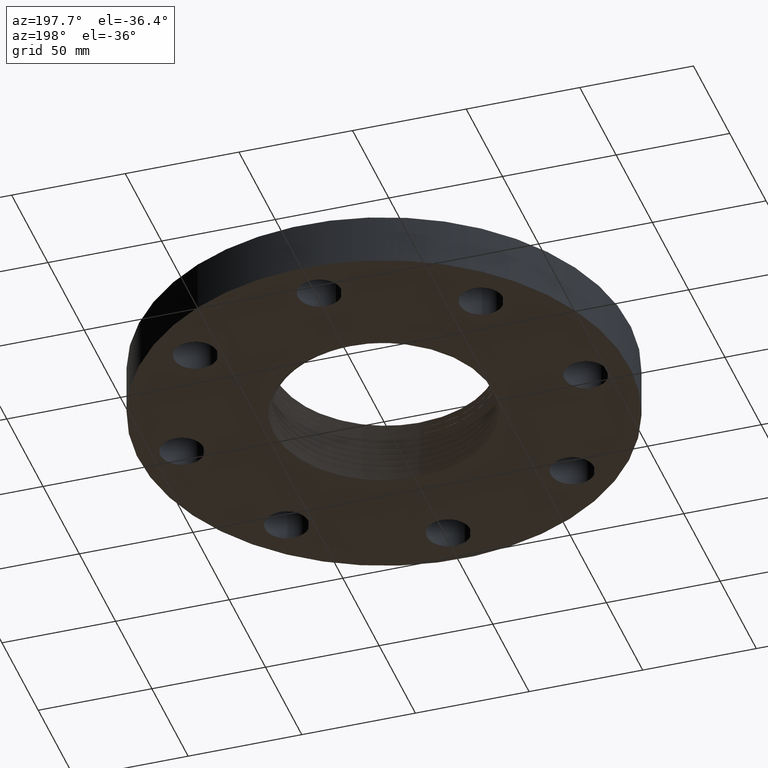
[diagram: clean part render]
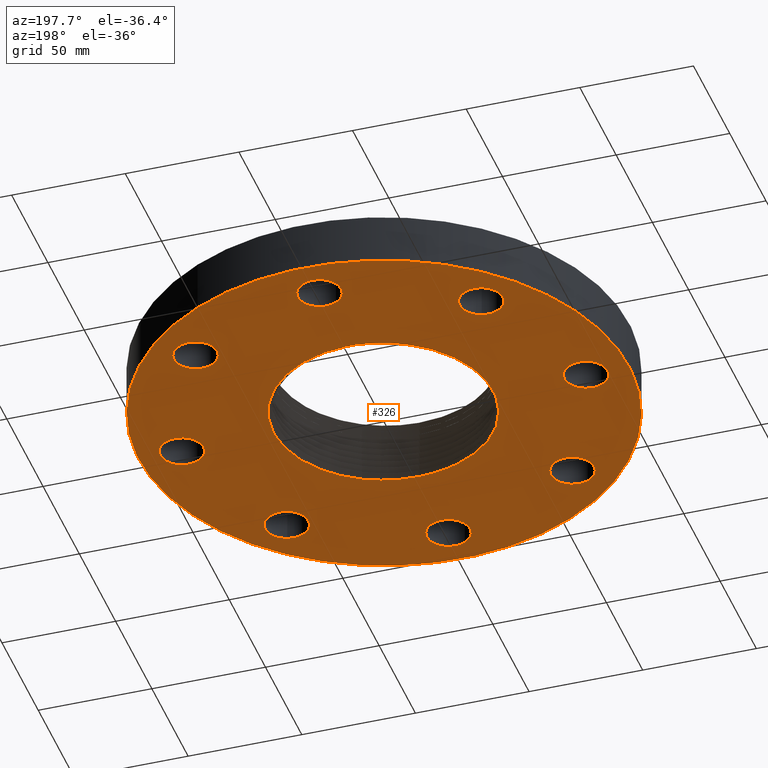
[diagram: same view with one face highlighted and labeled with its STEP entity id]
A machine part, auxiliary view. The second image highlights one B-rep face of the part: STEP entity #326.
In plain terms, the highlighted planar face has unit normal (0, 0, -1).
Its self-contained STEP definition (entity closure, byte-faithful):
#38=AXIS2_PLACEMENT_3D('Plane Axis2P3D',#35,#36,#37) ;
#42=AXIS2_PLACEMENT_3D('Circle Axis2P3D',#40,#41,$) ;
#51=AXIS2_PLACEMENT_3D('Circle Axis2P3D',#49,#50,$) ;
#170=AXIS2_PLACEMENT_3D('Circle Axis2P3D',#168,#169,$) ;
#184=AXIS2_PLACEMENT_3D('Circle Axis2P3D',#182,#183,$) ;
#193=AXIS2_PLACEMENT_3D('Circle Axis2P3D',#191,#192,$) ;
#202=AXIS2_PLACEMENT_3D('Circle Axis2P3D',#200,#201,$) ;
#211=AXIS2_PLACEMENT_3D('Circle Axis2P3D',#209,#210,$) ;
#220=AXIS2_PLACEMENT_3D('Circle Axis2P3D',#218,#219,$) ;
#229=AXIS2_PLACEMENT_3D('Circle Axis2P3D',#227,#228,$) ;
#238=AXIS2_PLACEMENT_3D('Circle Axis2P3D',#236,#237,$) ;
#247=AXIS2_PLACEMENT_3D('Circle Axis2P3D',#245,#246,$) ;
#256=AXIS2_PLACEMENT_3D('Circle Axis2P3D',#254,#255,$) ;
#265=AXIS2_PLACEMENT_3D('Circle Axis2P3D',#263,#264,$) ;
#274=AXIS2_PLACEMENT_3D('Circle Axis2P3D',#272,#273,$) ;
#283=AXIS2_PLACEMENT_3D('Circle Axis2P3D',#281,#282,$) ;
#292=AXIS2_PLACEMENT_3D('Circle Axis2P3D',#290,#291,$) ;
#301=AXIS2_PLACEMENT_3D('Circle Axis2P3D',#299,#300,$) ;
#310=AXIS2_PLACEMENT_3D('Circle Axis2P3D',#308,#309,$) ;
#319=AXIS2_PLACEMENT_3D('Circle Axis2P3D',#317,#318,$) ;
#35=CARTESIAN_POINT('Axis2P3D Location',(0.,0.,0.)) ;
#40=CARTESIAN_POINT('Axis2P3D Location',(0.,0.,0.)) ;
#44=CARTESIAN_POINT('Vertex',(2.03755853908,3.72972588805,4.19611851827E-016)) ;
#46=CARTESIAN_POINT('Vertex',(-2.03755853908,-3.72972588805,4.19611851827E-016)) ;
#49=CARTESIAN_POINT('Axis2P3D Location',(0.,0.,0.)) ;
#59=CARTESIAN_POINT('Control Point',(-0.0633267075977,-1.85553353111,0.)) ;
#60=CARTESIAN_POINT('Control Point',(-0.0506730812121,-1.85617253441,0.)) ;
#61=CARTESIAN_POINT('Control Point',(-0.0380133234835,-1.85670366126,0.)) ;
#62=CARTESIAN_POINT('Control Point',(-0.0253494040522,-1.85712679425,0.)) ;
#63=CARTESIAN_POINT('Control Point',(-0.0126830707512,-1.85744185462,0.)) ;
#64=CARTESIAN_POINT('Control Point',(-1.40866664012E-005,-1.85764889905,0.)) ;
#65=CARTESIAN_POINT('Vertex',(-0.0633267164325,-1.85553364769,-1.63774505768E-012)) ;
#67=CARTESIAN_POINT('Vertex',(-1.40866663999E-005,-1.85764889905,1.09273919747E-018)) ;
#71=CARTESIAN_POINT('Control Point',(0.897867915374,-1.64356104285,0.)) ;
#72=CARTESIAN_POINT('Control Point',(0.765347123306,-1.71319285004,0.)) ;
#73=CARTESIAN_POINT('Control Point',(0.625973435747,-1.76952661312,0.)) ;
#74=CARTESIAN_POINT('Control Point',(0.481518223036,-1.81164636436,0.)) ;
#75=CARTESIAN_POINT('Control Point',(0.297252922014,-1.84579828259,0.)) ;
#76=CARTESIAN_POINT('Control Point',(0.111232555061,-1.85669120128,0.)) ;
#77=CARTESIAN_POINT('Control Point',(0.0741482246952,-1.85793573452,0.)) ;
#78=CARTESIAN_POINT('Control Point',(0.0370557452381,-1.85825471735,0.)) ;
#79=CARTESIAN_POINT('Control Point',(-1.40866663999E-005,-1.85764889905,0.)) ;
#80=CARTESIAN_POINT('Vertex',(0.897867915374,-1.64356104285,3.2782175924E-018)) ;
#84=CARTESIAN_POINT('Control Point',(9.64942761215E-007,1.95298002828,0.)) ;
#85=CARTESIAN_POINT('Control Point',(0.144972228706,1.95072743952,0.)) ;
#86=CARTESIAN_POINT('Control Point',(0.289634633506,1.93502148648,0.)) ;
#87=CARTESIAN_POINT('Control Point',(0.432287546926,1.90590672339,0.)) ;
#88=CARTESIAN_POINT('Control Point',(0.710345979929,1.82155604941,0.)) ;
#89=CARTESIAN_POINT('Control Point',(0.967575826294,1.68759496258,0.)) ;
#90=CARTESIAN_POINT('Control Point',(1.08949498926,1.60882831482,0.)) ;
#91=CARTESIAN_POINT('Control Point',(1.31707598864,1.42962112028,0.)) ;
#92=CARTESIAN_POINT('Control Point',(1.50728291778,1.21173986815,0.)) ;
#93=CARTESIAN_POINT('Control Point',(1.59186767326,1.09425781474,0.)) ;
#94=CARTESIAN_POINT('Control Point',(1.7379268129,0.845116566587,0.)) ;
#95=CARTESIAN_POINT('Control Point',(1.83509963355,0.573490740335,0.)) ;
#96=CARTESIAN_POINT('Control Point',(1.87075025429,0.433620224708,0.)) ;
#97=CARTESIAN_POINT('Control Point',(1.90420063932,0.220178861545,0.)) ;
#98=CARTESIAN_POINT('Control Point',(1.90740995573,0.00502142828058,0.)) ;
#99=CARTESIAN_POINT('Control Point',(1.90510925876,-0.0666462988016,0.)) ;
#100=CARTESIAN_POINT('Control Point',(1.89236875737,-0.227343680729,0.)) ;
#101=CARTESIAN_POINT('Control Point',(1.86274996949,-0.385769681356,0.)) ;
#102=CARTESIAN_POINT('Control Point',(1.8411432614,-0.472662606298,0.)) ;
#103=CARTESIAN_POINT('Control Point',(1.77183898931,-0.694646178049,0.)) ;
#104=CARTESIAN_POINT('Control Point',(1.6694131849,-0.903789411636,0.)) ;
#105=CARTESIAN_POINT('Control Point',(1.59444554978,-1.02606268873,0.)) ;
#106=CARTESIAN_POINT('Control Point',(1.42936161738,-1.24564696859,0.)) ;
#107=CARTESIAN_POINT('Control Point',(1.22787761939,-1.43156319312,0.)) ;
#108=CARTESIAN_POINT('Control Point',(1.12387764557,-1.51194464238,0.)) ;
#109=CARTESIAN_POINT('Control Point',(1.01348008317,-1.58281371375,0.)) ;
#110=CARTESIAN_POINT('Control Point',(0.897867915374,-1.64356104285,0.)) ;
#111=CARTESIAN_POINT('Vertex',(9.64942760376E-007,1.95298002828,2.18547839493E-018)) ;
#115=CARTESIAN_POINT('Control Point',(-0.153339811648,1.94934040302,0.)) ;
#116=CARTESIAN_POINT('Control Point',(-0.122707222886,1.95127229388,0.)) ;
#117=CARTESIAN_POINT('Control Point',(-0.0920410961886,1.95260278553,0.)) ;
#118=CARTESIAN_POINT('Control Point',(-0.0613571672932,1.95333098553,0.)) ;
#119=CARTESIAN_POINT('Control Point',(-0.0306712172093,1.95345661802,0.)) ;
#120=CARTESIAN_POINT('Control Point',(9.64942760271E-007,1.95298002828,0.)) ;
#121=CARTESIAN_POINT('Vertex',(-0.153339811648,1.94934040302,1.58447183633E-017)) ;
#125=CARTESIAN_POINT('Control Point',(-0.153339811648,1.94934040302,0.)) ;
#126=CARTESIAN_POINT('Control Point',(-0.308918646225,1.93441351549,0.)) ;
#127=CARTESIAN_POINT('Control Point',(-0.462871560948,1.90395284394,0.)) ;
#128=CARTESIAN_POINT('Control Point',(-0.613134497968,1.85817263839,0.)) ;
#129=CARTESIAN_POINT('Control Point',(-0.765317117824,1.79451142241,0.)) ;
#130=CARTESIAN_POINT('Control Point',(-0.909127762038,1.71569301934,0.)) ;
#131=CARTESIAN_POINT('Control Point',(-0.916331873383,1.71169481377,0.)) ;
#132=CARTESIAN_POINT('Control Point',(-0.923513967225,1.70765884185,0.)) ;
#133=CARTESIAN_POINT('Control Point',(-0.930674120053,1.70358506877,0.)) ;
#134=CARTESIAN_POINT('Vertex',(-0.930674120053,1.70358506877,1.09273919747E-018)) ;
#138=CARTESIAN_POINT('Control Point',(-0.930674120053,1.70358506877,0.)) ;
#139=CARTESIAN_POINT('Control Point',(-1.05629361075,1.63211378717,0.)) ;
#140=CARTESIAN_POINT('Control Point',(-1.17515966469,1.54900742109,0.)) ;
#141=CARTESIAN_POINT('Control Point',(-1.2858210213,1.45510744647,0.)) ;
#142=CARTESIAN_POINT('Control Point',(-1.48817274262,1.24794302656,0.)) ;
#143=CARTESIAN_POINT('Control Point',(-1.64840618834,1.00730122274,0.)) ;
#144=CARTESIAN_POINT('Control Point',(-1.71696051732,0.879905757949,0.)) ;
#145=CARTESIAN_POINT('Control Point',(-1.80123922726,0.680484058145,0.)) ;
#146=CARTESIAN_POINT('Control Point',(-1.85658434124,0.472169242977,0.)) ;
#147=CARTESIAN_POINT('Control Point',(-1.87175554708,0.401946221005,0.)) ;
#148=CARTESIAN_POINT('Control Point',(-1.89249570829,0.27804070504,0.)) ;
#149=CARTESIAN_POINT('Control Point',(-1.90299799424,0.153002566465,0.)) ;
#150=CARTESIAN_POINT('Control Point',(-1.90560875318,0.099294552562,0.)) ;
#151=CARTESIAN_POINT('Control Point',(-1.90824054737,-0.0977977052578,0.)) ;
#152=CARTESIAN_POINT('Control Point',(-1.88544509882,-0.294054368954,0.)) ;
#153=CARTESIAN_POINT('Control Point',(-1.85547198955,-0.434660357491,0.)) ;
#154=CARTESIAN_POINT('Control Point',(-1.76947876948,-0.708372095065,0.)) ;
#155=CARTESIAN_POINT('Control Point',(-1.63414295575,-0.960657252695,0.)) ;
#156=CARTESIAN_POINT('Control Point',(-1.55477129978,-1.07996303024,0.)) ;
#157=CARTESIAN_POINT('Control Point',(-1.37461704576,-1.30196712359,0.)) ;
#158=CARTESIAN_POINT('Control Point',(-1.15641513803,-1.48596153752,0.)) ;
#159=CARTESIAN_POINT('Control Point',(-1.03897587674,-1.56727418971,0.)) ;
#160=CARTESIAN_POINT('Control Point',(-0.811603747509,-1.6946109335,0.)) ;
#161=CARTESIAN_POINT('Control Point',(-0.566318860669,-1.78064495725,0.)) ;
#162=CARTESIAN_POINT('Control Point',(-0.452384129918,-1.81075916623,0.)) ;
#163=CARTESIAN_POINT('Control Point',(-0.336607366294,-1.8317545595,0.)) ;
#164=CARTESIAN_POINT('Control Point',(-0.219968956672,-1.84353712047,0.)) ;
#165=CARTESIAN_POINT('Vertex',(-0.219968958275,-1.84353710246,-4.40956108023E-012)) ;
#168=CARTESIAN_POINT('Axis2P3D Location',(-1.39870617276E-016,0.,0.)) ;
#182=CARTESIAN_POINT('Axis2P3D Location',(3.50000000001,3.49676543189E-017,0.)) ;
#186=CARTESIAN_POINT('Vertex',(3.82909346072,-0.179784576977,0.)) ;
#188=CARTESIAN_POINT('Vertex',(3.1709065393,0.179784576977,0.)) ;
#191=CARTESIAN_POINT('Axis2P3D Location',(3.50000000001,6.99353086378E-017,0.)) ;
#200=CARTESIAN_POINT('Axis2P3D Location',(2.47487373416,-2.47487373416,0.)) ;
#204=CARTESIAN_POINT('Vertex',(2.36929640998,-2.11504262292,0.)) ;
#206=CARTESIAN_POINT('Vertex',(2.58045105834,-2.83470484541,0.)) ;
#209=CARTESIAN_POINT('Axis2P3D Location',(2.47487373416,-2.47487373416,0.)) ;
#218=CARTESIAN_POINT('Axis2P3D Location',(-2.79741234551E-016,-3.50000000001,0.)) ;
#222=CARTESIAN_POINT('Vertex',(0.179784576977,-3.1709065393,0.)) ;
#224=CARTESIAN_POINT('Vertex',(-0.179784576977,-3.82909346072,0.)) ;
#227=CARTESIAN_POINT('Axis2P3D Location',(-4.19611851827E-016,-3.50000000001,0.)) ;
#236=CARTESIAN_POINT('Axis2P3D Location',(-2.47487373416,-2.47487373416,0.)) ;
#240=CARTESIAN_POINT('Vertex',(-2.11504262292,-2.36929640998,0.)) ;
#242=CARTESIAN_POINT('Vertex',(-2.83470484541,-2.58045105834,0.)) ;
#245=CARTESIAN_POINT('Axis2P3D Location',(-2.47487373416,-2.47487373416,0.)) ;
#254=CARTESIAN_POINT('Axis2P3D Location',(-3.50000000001,-4.89547160465E-016,0.)) ;
#258=CARTESIAN_POINT('Vertex',(-3.1709065393,-0.179784576977,0.)) ;
#260=CARTESIAN_POINT('Vertex',(-3.82909346072,0.179784576977,0.)) ;
#263=CARTESIAN_POINT('Axis2P3D Location',(-3.50000000001,-4.89547160465E-016,0.)) ;
#272=CARTESIAN_POINT('Axis2P3D Location',(-2.47487373416,2.47487373416,0.)) ;
#276=CARTESIAN_POINT('Vertex',(-2.36929640998,2.11504262292,0.)) ;
#278=CARTESIAN_POINT('Vertex',(-2.58045105834,2.83470484541,0.)) ;
#281=CARTESIAN_POINT('Axis2P3D Location',(-2.47487373416,2.47487373416,0.)) ;
#290=CARTESIAN_POINT('Axis2P3D Location',(-7.69288395016E-016,3.50000000001,0.)) ;
#294=CARTESIAN_POINT('Vertex',(-0.179784576977,3.1709065393,0.)) ;
#296=CARTESIAN_POINT('Vertex',(0.179784576977,3.82909346072,0.)) ;
#299=CARTESIAN_POINT('Axis2P3D Location',(-5.59482469102E-016,3.50000000001,0.)) ;
#308=CARTESIAN_POINT('Axis2P3D Location',(2.47487373416,2.47487373416,0.)) ;
#312=CARTESIAN_POINT('Vertex',(2.11504262292,2.36929640998,0.)) ;
#314=CARTESIAN_POINT('Vertex',(2.83470484541,2.58045105834,0.)) ;
#317=CARTESIAN_POINT('Axis2P3D Location',(2.47487373416,2.47487373416,0.)) ;
#36=DIRECTION('Axis2P3D Direction',(0.,0.,-0.0393700787402)) ;
#37=DIRECTION('Axis2P3D XDirection',(0.0393700787402,0.,0.)) ;
#41=DIRECTION('Axis2P3D Direction',(0.,0.,-0.0393700787402)) ;
#50=DIRECTION('Axis2P3D Direction',(0.,0.,-0.0393700787402)) ;
#169=DIRECTION('Axis2P3D Direction',(0.,0.,-0.0393700787402)) ;
#183=DIRECTION('Axis2P3D Direction',(0.,0.,-0.0393700787402)) ;
#192=DIRECTION('Axis2P3D Direction',(0.,0.,-0.0393700787402)) ;
#201=DIRECTION('Axis2P3D Direction',(0.,0.,-0.0393700787402)) ;
#210=DIRECTION('Axis2P3D Direction',(0.,0.,-0.0393700787402)) ;
#219=DIRECTION('Axis2P3D Direction',(0.,0.,-0.0393700787402)) ;
#228=DIRECTION('Axis2P3D Direction',(0.,0.,-0.0393700787402)) ;
#237=DIRECTION('Axis2P3D Direction',(0.,0.,-0.0393700787402)) ;
#246=DIRECTION('Axis2P3D Direction',(0.,0.,-0.0393700787402)) ;
#255=DIRECTION('Axis2P3D Direction',(0.,0.,-0.0393700787402)) ;
#264=DIRECTION('Axis2P3D Direction',(0.,0.,-0.0393700787402)) ;
#273=DIRECTION('Axis2P3D Direction',(0.,0.,-0.0393700787402)) ;
#282=DIRECTION('Axis2P3D Direction',(0.,0.,-0.0393700787402)) ;
#291=DIRECTION('Axis2P3D Direction',(0.,0.,-0.0393700787402)) ;
#300=DIRECTION('Axis2P3D Direction',(0.,0.,-0.0393700787402)) ;
#309=DIRECTION('Axis2P3D Direction',(0.,0.,-0.0393700787402)) ;
#318=DIRECTION('Axis2P3D Direction',(0.,0.,-0.0393700787402)) ;
#55=ORIENTED_EDGE('',*,*,#48,.T.) ;
#56=ORIENTED_EDGE('',*,*,#53,.T.) ;
#174=ORIENTED_EDGE('',*,*,#69,.T.) ;
#175=ORIENTED_EDGE('',*,*,#82,.F.) ;
#176=ORIENTED_EDGE('',*,*,#113,.F.) ;
#177=ORIENTED_EDGE('',*,*,#123,.F.) ;
#178=ORIENTED_EDGE('',*,*,#136,.T.) ;
#179=ORIENTED_EDGE('',*,*,#167,.T.) ;
#180=ORIENTED_EDGE('',*,*,#172,.F.) ;
#197=ORIENTED_EDGE('',*,*,#190,.F.) ;
#198=ORIENTED_EDGE('',*,*,#195,.F.) ;
#215=ORIENTED_EDGE('',*,*,#208,.F.) ;
#216=ORIENTED_EDGE('',*,*,#213,.F.) ;
#233=ORIENTED_EDGE('',*,*,#226,.F.) ;
#234=ORIENTED_EDGE('',*,*,#231,.F.) ;
#251=ORIENTED_EDGE('',*,*,#244,.F.) ;
#252=ORIENTED_EDGE('',*,*,#249,.F.) ;
#269=ORIENTED_EDGE('',*,*,#262,.F.) ;
#270=ORIENTED_EDGE('',*,*,#267,.F.) ;
#287=ORIENTED_EDGE('',*,*,#280,.F.) ;
#288=ORIENTED_EDGE('',*,*,#285,.F.) ;
#305=ORIENTED_EDGE('',*,*,#298,.F.) ;
#306=ORIENTED_EDGE('',*,*,#303,.F.) ;
#323=ORIENTED_EDGE('',*,*,#316,.F.) ;
#324=ORIENTED_EDGE('',*,*,#321,.F.) ;
#181=FACE_BOUND('',#173,.T.) ;
#199=FACE_BOUND('',#196,.T.) ;
#217=FACE_BOUND('',#214,.T.) ;
#235=FACE_BOUND('',#232,.T.) ;
#253=FACE_BOUND('',#250,.T.) ;
#271=FACE_BOUND('',#268,.T.) ;
#289=FACE_BOUND('',#286,.T.) ;
#307=FACE_BOUND('',#304,.T.) ;
#325=FACE_BOUND('',#322,.T.) ;
#326=ADVANCED_FACE('PartBody',(#57,#181,#199,#217,#235,#253,#271,#289,#307,#325),#39,.T.) ;
#58=B_SPLINE_CURVE_WITH_KNOTS('',5,(#59,#60,#61,#62,#63,#64),.UNSPECIFIED.,.F.,.U.,(6,6),(2.89483751909,5.19925978414),.UNSPECIFIED.) ;
#70=B_SPLINE_CURVE_WITH_KNOTS('',5,(#71,#72,#73,#74,#75,#76,#77,#78,#79),.UNSPECIFIED.,.F.,.U.,(6,3,6),(0.,27.1156607427,33.8584702238),.UNSPECIFIED.) ;
#83=B_SPLINE_CURVE_WITH_KNOTS('',5,(#84,#85,#86,#87,#88,#89,#90,#91,#92,#93,#94,#95,#96,#97,#98,#99,#100,#101,#102,#103,#104,#105,#106,#107,#108,#109,#110),.UNSPECIFIED.,.F.,.U.,(6,3,3,3,3,3,3,3,6),(0.,25.7307295771,51.4800434704,77.2397945831,102.979999555,115.84185167,131.9143736,157.632189795,181.288102729),.UNSPECIFIED.) ;
#114=B_SPLINE_CURVE_WITH_KNOTS('',5,(#115,#116,#117,#118,#119,#120),.UNSPECIFIED.,.F.,.U.,(6,6),(0.,5.44395905801),.UNSPECIFIED.) ;
#124=B_SPLINE_CURVE_WITH_KNOTS('',5,(#125,#126,#127,#128,#129,#130,#131,#132,#133),.UNSPECIFIED.,.F.,.U.,(6,3,6),(0.,27.7211995638,29.1876102785),.UNSPECIFIED.) ;
#137=B_SPLINE_CURVE_WITH_KNOTS('',5,(#138,#139,#140,#141,#142,#143,#144,#145,#146,#147,#148,#149,#150,#151,#152,#153,#154,#155,#156,#157,#158,#159,#160,#161,#162,#163,#164),.UNSPECIFIED.,.F.,.U.,(6,3,3,3,3,3,3,3,6),(0.,25.727071971,51.4579112758,64.3225809888,73.9710760377,99.7124833179,125.479279521,151.250966325,172.60310106),.UNSPECIFIED.) ;
#43=CIRCLE('generated circle',#42,4.25000000002) ;
#52=CIRCLE('generated circle',#51,4.25000000002) ;
#171=CIRCLE('generated circle',#170,1.85661395846) ;
#185=CIRCLE('generated circle',#184,0.375000000002) ;
#194=CIRCLE('generated circle',#193,0.375000000002) ;
#203=CIRCLE('generated circle',#202,0.375000000002) ;
#212=CIRCLE('generated circle',#211,0.375000000002) ;
#221=CIRCLE('generated circle',#220,0.375000000002) ;
#230=CIRCLE('generated circle',#229,0.375000000002) ;
#239=CIRCLE('generated circle',#238,0.375000000002) ;
#248=CIRCLE('generated circle',#247,0.375000000002) ;
#257=CIRCLE('generated circle',#256,0.375000000001) ;
#266=CIRCLE('generated circle',#265,0.375000000001) ;
#275=CIRCLE('generated circle',#274,0.375000000002) ;
#284=CIRCLE('generated circle',#283,0.375000000002) ;
#293=CIRCLE('generated circle',#292,0.375000000002) ;
#302=CIRCLE('generated circle',#301,0.375000000002) ;
#311=CIRCLE('generated circle',#310,0.375000000002) ;
#320=CIRCLE('generated circle',#319,0.375000000002) ;
#48=EDGE_CURVE('',#45,#47,#43,.T.) ;
#53=EDGE_CURVE('',#47,#45,#52,.T.) ;
#69=EDGE_CURVE('',#66,#68,#58,.T.) ;
#82=EDGE_CURVE('',#81,#68,#70,.T.) ;
#113=EDGE_CURVE('',#112,#81,#83,.T.) ;
#123=EDGE_CURVE('',#122,#112,#114,.T.) ;
#136=EDGE_CURVE('',#122,#135,#124,.T.) ;
#167=EDGE_CURVE('',#135,#166,#137,.T.) ;
#172=EDGE_CURVE('',#66,#166,#171,.T.) ;
#190=EDGE_CURVE('',#187,#189,#185,.T.) ;
#195=EDGE_CURVE('',#189,#187,#194,.T.) ;
#208=EDGE_CURVE('',#205,#207,#203,.T.) ;
#213=EDGE_CURVE('',#207,#205,#212,.T.) ;
#226=EDGE_CURVE('',#223,#225,#221,.T.) ;
#231=EDGE_CURVE('',#225,#223,#230,.T.) ;
#244=EDGE_CURVE('',#241,#243,#239,.T.) ;
#249=EDGE_CURVE('',#243,#241,#248,.T.) ;
#262=EDGE_CURVE('',#259,#261,#257,.T.) ;
#267=EDGE_CURVE('',#261,#259,#266,.T.) ;
#280=EDGE_CURVE('',#277,#279,#275,.T.) ;
#285=EDGE_CURVE('',#279,#277,#284,.T.) ;
#298=EDGE_CURVE('',#295,#297,#293,.T.) ;
#303=EDGE_CURVE('',#297,#295,#302,.T.) ;
#316=EDGE_CURVE('',#313,#315,#311,.T.) ;
#321=EDGE_CURVE('',#315,#313,#320,.T.) ;
#54=EDGE_LOOP('',(#55,#56)) ;
#173=EDGE_LOOP('',(#174,#175,#176,#177,#178,#179,#180)) ;
#196=EDGE_LOOP('',(#197,#198)) ;
#214=EDGE_LOOP('',(#215,#216)) ;
#232=EDGE_LOOP('',(#233,#234)) ;
#250=EDGE_LOOP('',(#251,#252)) ;
#268=EDGE_LOOP('',(#269,#270)) ;
#286=EDGE_LOOP('',(#287,#288)) ;
#304=EDGE_LOOP('',(#305,#306)) ;
#322=EDGE_LOOP('',(#323,#324)) ;
#57=FACE_OUTER_BOUND('',#54,.T.) ;
#39=PLANE('',#38) ;
#45=VERTEX_POINT('',#44) ;
#47=VERTEX_POINT('',#46) ;
#66=VERTEX_POINT('',#65) ;
#68=VERTEX_POINT('',#67) ;
#81=VERTEX_POINT('',#80) ;
#112=VERTEX_POINT('',#111) ;
#122=VERTEX_POINT('',#121) ;
#135=VERTEX_POINT('',#134) ;
#166=VERTEX_POINT('',#165) ;
#187=VERTEX_POINT('',#186) ;
#189=VERTEX_POINT('',#188) ;
#205=VERTEX_POINT('',#204) ;
#207=VERTEX_POINT('',#206) ;
#223=VERTEX_POINT('',#222) ;
#225=VERTEX_POINT('',#224) ;
#241=VERTEX_POINT('',#240) ;
#243=VERTEX_POINT('',#242) ;
#259=VERTEX_POINT('',#258) ;
#261=VERTEX_POINT('',#260) ;
#277=VERTEX_POINT('',#276) ;
#279=VERTEX_POINT('',#278) ;
#295=VERTEX_POINT('',#294) ;
#297=VERTEX_POINT('',#296) ;
#313=VERTEX_POINT('',#312) ;
#315=VERTEX_POINT('',#314) ;